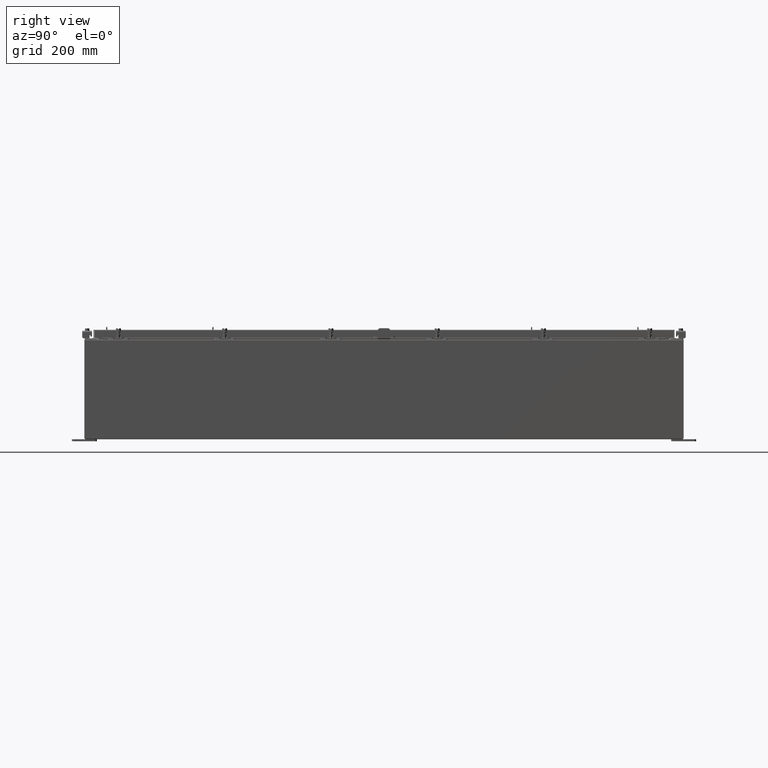
[diagram: clean part render]
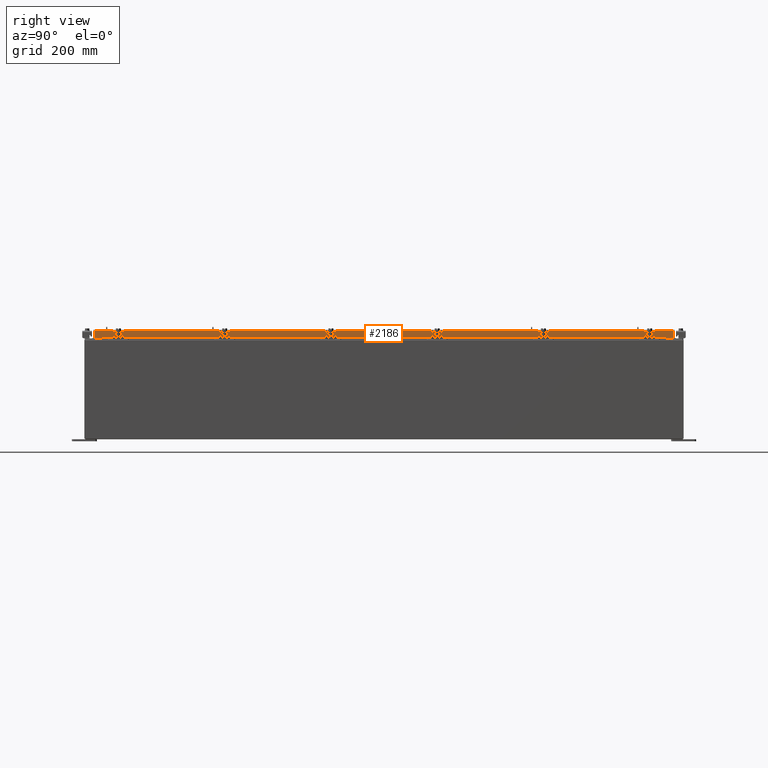
[diagram: same view with one face highlighted and labeled with its STEP entity id]
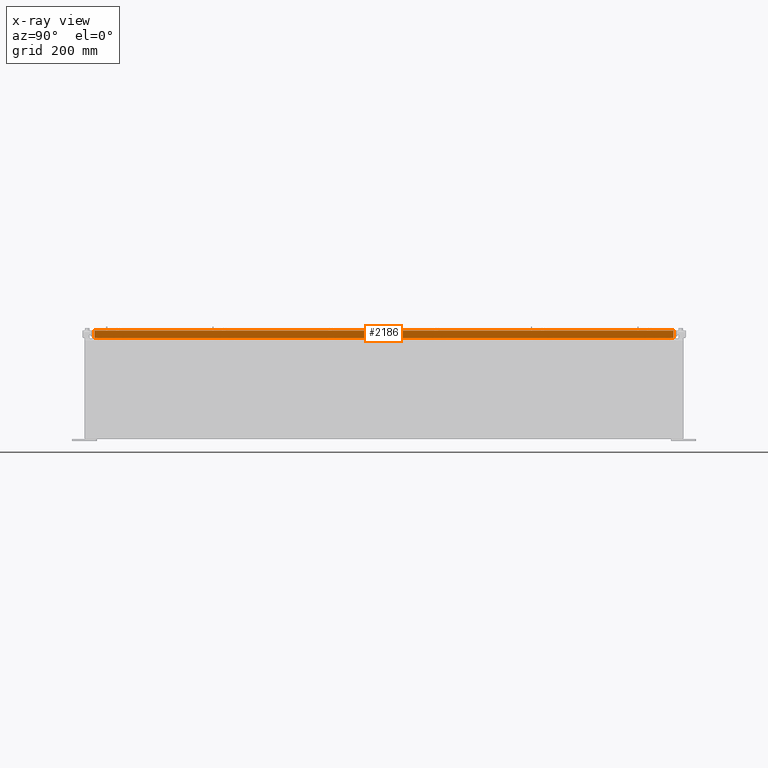
[diagram: x-ray of the same camera — body ghosted, the highlighted face saturated]
A machine part, right view. The second image highlights one B-rep face of the part: STEP entity #2186.
The next image is the same camera in x-ray: the body ghosted, the highlighted face saturated — about 0% of this face is hidden behind the body in this view.
In plain terms, the highlighted planar face has unit normal (1, 0, 0).
Its self-contained STEP definition (entity closure, byte-faithful):
#1126 = EDGE_CURVE ( 'NONE', #21622, #9163, #20962, .T. ) ;
#1379 = EDGE_CURVE ( 'NONE', #2151, #15594, #14962, .T. ) ;
#1581 = EDGE_CURVE ( 'NONE', #14313, #21205, #16623, .T. ) ;
#1792 = EDGE_CURVE ( 'NONE', #9163, #14313, #6952, .T. ) ;
#1874 = DIRECTION ( 'NONE',  ( 0.0000000000000000000, -1.000000000000000000, 0.0000000000000000000 ) ) ;
#2151 = VERTEX_POINT ( 'NONE', #10884 ) ;
#2186 = ADVANCED_FACE ( 'NONE', ( #21585 ), #19450, .T. ) ;
#3298 = CARTESIAN_POINT ( 'NONE',  ( 17.07800000000000300, -29.00515786437627200, -0.08770000000000007000 ) ) ;
#3648 = VECTOR ( 'NONE', #4032, 39.37007874015748100 ) ;
#4032 = DIRECTION ( 'NONE',  ( -2.818880942772360100E-015, -6.982962677686265900E-015, 1.000000000000000000 ) ) ;
#6234 = EDGE_LOOP ( 'NONE', ( #16746, #14610, #19583, #25431, #13156, #10422 ) ) ;
#6403 = VECTOR ( 'NONE', #17632, 39.37007874015748100 ) ;
#6682 = CARTESIAN_POINT ( 'NONE',  ( 17.07800000000000300, 0.0000000000000000000, 4.840166239667796000E-014 ) ) ;
#6952 = LINE ( 'NONE', #9504, #17620 ) ;
#7251 = CARTESIAN_POINT ( 'NONE',  ( 17.07800000000000700, -29.00515786437626500, -0.8499999999999996400 ) ) ;
#8826 = DIRECTION ( 'NONE',  ( 1.000000000000000000, 0.0000000000000000000, 2.818880942772360100E-015 ) ) ;
#9163 = VERTEX_POINT ( 'NONE', #23577 ) ;
#9504 = CARTESIAN_POINT ( 'NONE',  ( 17.07800000000000700, -29.09400000000000500, -0.8499999999999996400 ) ) ;
#9653 = VECTOR ( 'NONE', #22545, 39.37007874015748100 ) ;
#10422 = ORIENTED_EDGE ( 'NONE', *, *, #13917, .T. ) ;
#10884 = CARTESIAN_POINT ( 'NONE',  ( 17.07800000000000700, 29.00515786437627200, -0.8499999999999996400 ) ) ;
#10999 = DIRECTION ( 'NONE',  ( -2.818880942772360100E-015, -6.982962677686265900E-015, 1.000000000000000000 ) ) ;
#12072 = LINE ( 'NONE', #15487, #6403 ) ;
#13156 = ORIENTED_EDGE ( 'NONE', *, *, #1379, .T. ) ;
#13469 = EDGE_CURVE ( 'NONE', #2151, #21622, #12072, .T. ) ;
#13917 = EDGE_CURVE ( 'NONE', #15594, #21205, #14053, .T. ) ;
#14053 = LINE ( 'NONE', #16764, #18378 ) ;
#14313 = VERTEX_POINT ( 'NONE', #7251 ) ;
#14610 = ORIENTED_EDGE ( 'NONE', *, *, #1792, .F. ) ;
#14962 = LINE ( 'NONE', #23186, #3648 ) ;
#15487 = CARTESIAN_POINT ( 'NONE',  ( 17.07800000000000700, -29.09400000000000500, -0.8499999999999996400 ) ) ;
#15594 = VERTEX_POINT ( 'NONE', #15839 ) ;
#15839 = CARTESIAN_POINT ( 'NONE',  ( 17.07800000000000300, 29.00515786437626500, -0.08770000000000007000 ) ) ;
#15878 = CARTESIAN_POINT ( 'NONE',  ( 17.07799999999998500, 28.25515786437626500, -0.8500000000000016400 ) ) ;
#16623 = LINE ( 'NONE', #23747, #27289 ) ;
#16746 = ORIENTED_EDGE ( 'NONE', *, *, #1581, .F. ) ;
#16764 = CARTESIAN_POINT ( 'NONE',  ( 17.07800000000000300, 0.0000000000000000000, -0.08770000000000007000 ) ) ;
#17620 = VECTOR ( 'NONE', #26443, 39.37007874015748100 ) ;
#17632 = DIRECTION ( 'NONE',  ( 0.0000000000000000000, -1.000000000000000000, 0.0000000000000000000 ) ) ;
#18282 = CARTESIAN_POINT ( 'NONE',  ( 17.07799999999998500, 28.25515786437626500, -0.8500000000000016400 ) ) ;
#18378 = VECTOR ( 'NONE', #1874, 39.37007874015748100 ) ;
#19450 = PLANE ( 'NONE',  #26270 ) ;
#19583 = ORIENTED_EDGE ( 'NONE', *, *, #1126, .F. ) ;
#20962 = LINE ( 'NONE', #18282, #9653 ) ;
#21205 = VERTEX_POINT ( 'NONE', #3298 ) ;
#21585 = FACE_OUTER_BOUND ( 'NONE', #6234, .T. ) ;
#21622 = VERTEX_POINT ( 'NONE', #15878 ) ;
#22545 = DIRECTION ( 'NONE',  ( 0.0000000000000000000, -1.000000000000000000, 0.0000000000000000000 ) ) ;
#23186 = CARTESIAN_POINT ( 'NONE',  ( 17.07800000000000300, 29.00515786437626500, 2.509435972240157400E-013 ) ) ;
#23577 = CARTESIAN_POINT ( 'NONE',  ( 17.07799999999998500, -28.25515786437626500, -0.8500000000000016400 ) ) ;
#23724 = DIRECTION ( 'NONE',  ( 2.818880942772360100E-015, 0.0000000000000000000, -1.000000000000000000 ) ) ;
#23747 = CARTESIAN_POINT ( 'NONE',  ( 17.07800000000000300, -29.00515786437627200, -0.07469999999999978000 ) ) ;
#25431 = ORIENTED_EDGE ( 'NONE', *, *, #13469, .F. ) ;
#26270 = AXIS2_PLACEMENT_3D ( 'NONE', #6682, #8826, #23724 ) ;
#26443 = DIRECTION ( 'NONE',  ( 0.0000000000000000000, -1.000000000000000000, 0.0000000000000000000 ) ) ;
#27289 = VECTOR ( 'NONE', #10999, 39.37007874015748100 ) ;